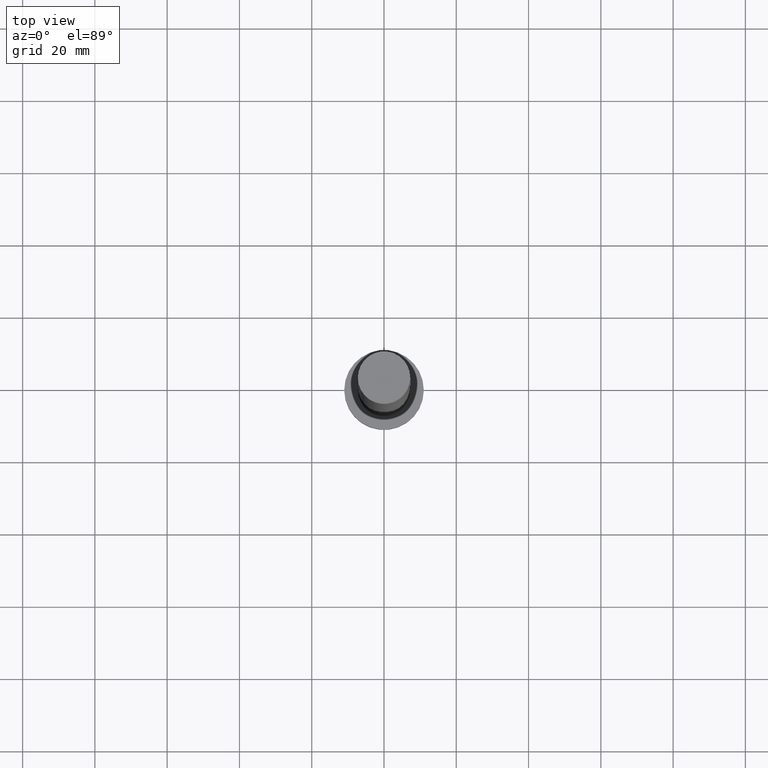
[diagram: clean part render]
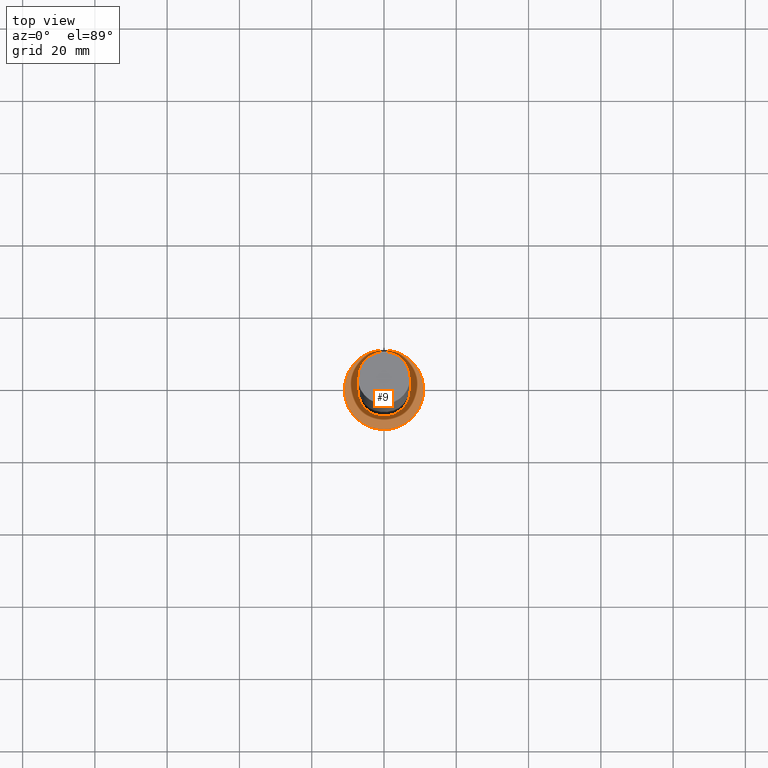
[diagram: same view with one face highlighted and labeled with its STEP entity id]
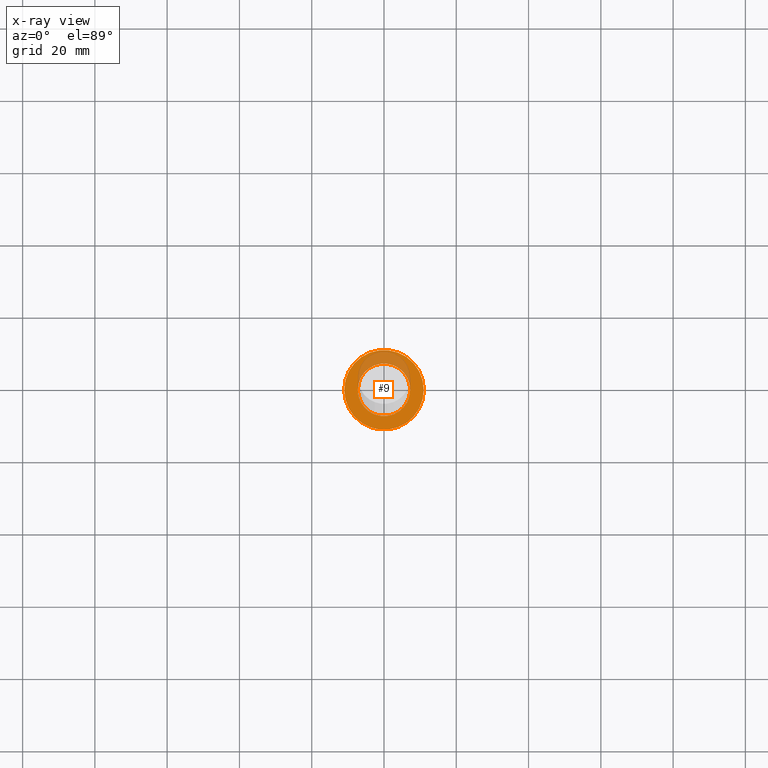
[diagram: x-ray of the same camera — body ghosted, the highlighted face saturated]
A machine part, top view. The second image highlights one B-rep face of the part: STEP entity #9.
The next image is the same camera in x-ray: the body ghosted, the highlighted face saturated — about 23% of this face is hidden behind the body in this view.
In plain terms, the highlighted planar face has unit normal (0, 0, 1).
Its self-contained STEP definition (entity closure, byte-faithful):
#9 = ADVANCED_FACE ( 'NONE', ( #17, #70 ), #150, .T. ) ;
#10 = CARTESIAN_POINT ( 'NONE',  ( 7.250000000000000000, 8.878689293818310074E-16, 7.000000000000000000 ) ) ;
#17 = FACE_BOUND ( 'NONE', #54, .T. ) ;
#18 = VERTEX_POINT ( 'NONE', #89 ) ;
#27 = AXIS2_PLACEMENT_3D ( 'NONE', #193, #58, #138 ) ;
#43 = AXIS2_PLACEMENT_3D ( 'NONE', #109, #46, #174 ) ;
#46 = DIRECTION ( 'NONE',  ( 0.000000000000000000, 0.000000000000000000, 1.000000000000000000 ) ) ;
#47 = DIRECTION ( 'NONE',  ( 1.000000000000000000, 0.000000000000000000, 0.000000000000000000 ) ) ;
#48 = EDGE_CURVE ( 'NONE', #210, #18, #182, .T. ) ;
#52 = VERTEX_POINT ( 'NONE', #10 ) ;
#53 = CIRCLE ( 'NONE', #65, 7.250000000000000000 ) ;
#54 = EDGE_LOOP ( 'NONE', ( #166, #183 ) ) ;
#58 = DIRECTION ( 'NONE',  ( 0.000000000000000000, 0.000000000000000000, 1.000000000000000000 ) ) ;
#65 = AXIS2_PLACEMENT_3D ( 'NONE', #241, #177, #47 ) ;
#70 = FACE_OUTER_BOUND ( 'NONE', #81, .T. ) ;
#76 = CARTESIAN_POINT ( 'NONE',  ( 0.000000000000000000, 0.000000000000000000, 7.000000000000000000 ) ) ;
#77 = CARTESIAN_POINT ( 'NONE',  ( -7.250000000000000000, 0.000000000000000000, 7.000000000000000000 ) ) ;
#81 = EDGE_LOOP ( 'NONE', ( #164, #176 ) ) ;
#85 = DIRECTION ( 'NONE',  ( 0.000000000000000000, 0.000000000000000000, 1.000000000000000000 ) ) ;
#89 = CARTESIAN_POINT ( 'NONE',  ( -11.00000000000000000, 0.000000000000000000, 7.000000000000000000 ) ) ;
#94 = DIRECTION ( 'NONE',  ( 1.000000000000000000, 0.000000000000000000, 0.000000000000000000 ) ) ;
#109 = CARTESIAN_POINT ( 'NONE',  ( 0.000000000000000000, 0.000000000000000000, 7.000000000000000000 ) ) ;
#112 = CIRCLE ( 'NONE', #43, 7.250000000000000000 ) ;
#129 = CARTESIAN_POINT ( 'NONE',  ( 0.000000000000000000, 0.000000000000000000, 7.000000000000000000 ) ) ;
#136 = VERTEX_POINT ( 'NONE', #77 ) ;
#138 = DIRECTION ( 'NONE',  ( 1.000000000000000000, 0.000000000000000000, 0.000000000000000000 ) ) ;
#142 = EDGE_CURVE ( 'NONE', #136, #52, #112, .T. ) ;
#148 = EDGE_CURVE ( 'NONE', #18, #210, #178, .T. ) ;
#150 = PLANE ( 'NONE',  #200 ) ;
#164 = ORIENTED_EDGE ( 'NONE', *, *, #148, .T. ) ;
#166 = ORIENTED_EDGE ( 'NONE', *, *, #142, .F. ) ;
#168 = DIRECTION ( 'NONE',  ( 1.000000000000000000, 0.000000000000000000, -0.000000000000000000 ) ) ;
#174 = DIRECTION ( 'NONE',  ( 1.000000000000000000, 0.000000000000000000, 0.000000000000000000 ) ) ;
#175 = DIRECTION ( 'NONE',  ( 0.000000000000000000, 0.000000000000000000, 1.000000000000000000 ) ) ;
#176 = ORIENTED_EDGE ( 'NONE', *, *, #48, .T. ) ;
#177 = DIRECTION ( 'NONE',  ( 0.000000000000000000, 0.000000000000000000, 1.000000000000000000 ) ) ;
#178 = CIRCLE ( 'NONE', #27, 11.00000000000000000 ) ;
#182 = CIRCLE ( 'NONE', #197, 11.00000000000000000 ) ;
#183 = ORIENTED_EDGE ( 'NONE', *, *, #239, .F. ) ;
#193 = CARTESIAN_POINT ( 'NONE',  ( 0.000000000000000000, 0.000000000000000000, 7.000000000000000000 ) ) ;
#197 = AXIS2_PLACEMENT_3D ( 'NONE', #76, #175, #94 ) ;
#200 = AXIS2_PLACEMENT_3D ( 'NONE', #129, #85, #168 ) ;
#210 = VERTEX_POINT ( 'NONE', #217 ) ;
#217 = CARTESIAN_POINT ( 'NONE',  ( 11.00000000000000000, 1.347111479062088405E-15, 7.000000000000000000 ) ) ;
#239 = EDGE_CURVE ( 'NONE', #52, #136, #53, .T. ) ;
#241 = CARTESIAN_POINT ( 'NONE',  ( 0.000000000000000000, 0.000000000000000000, 7.000000000000000000 ) ) ;